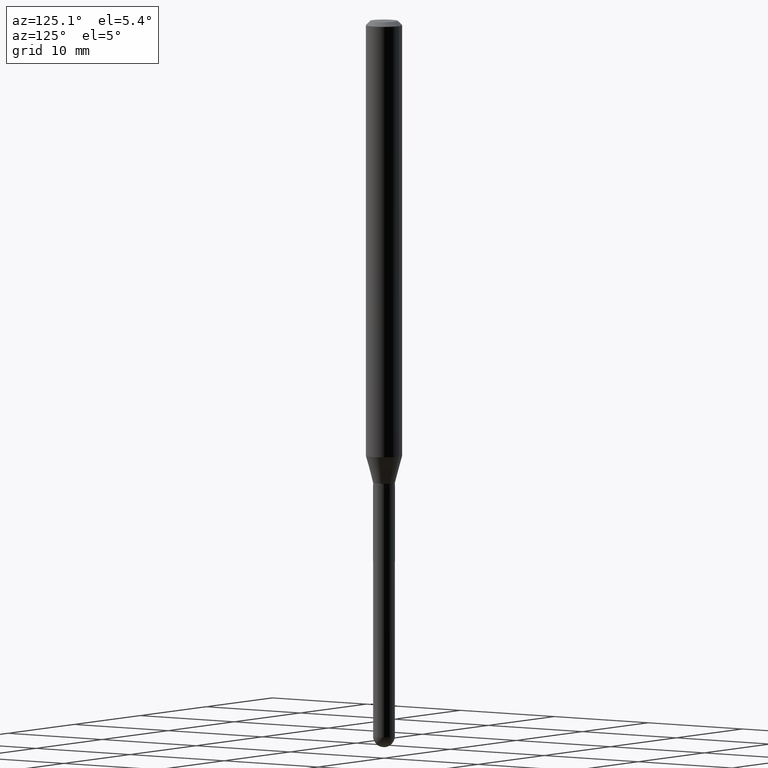
[diagram: clean part render]
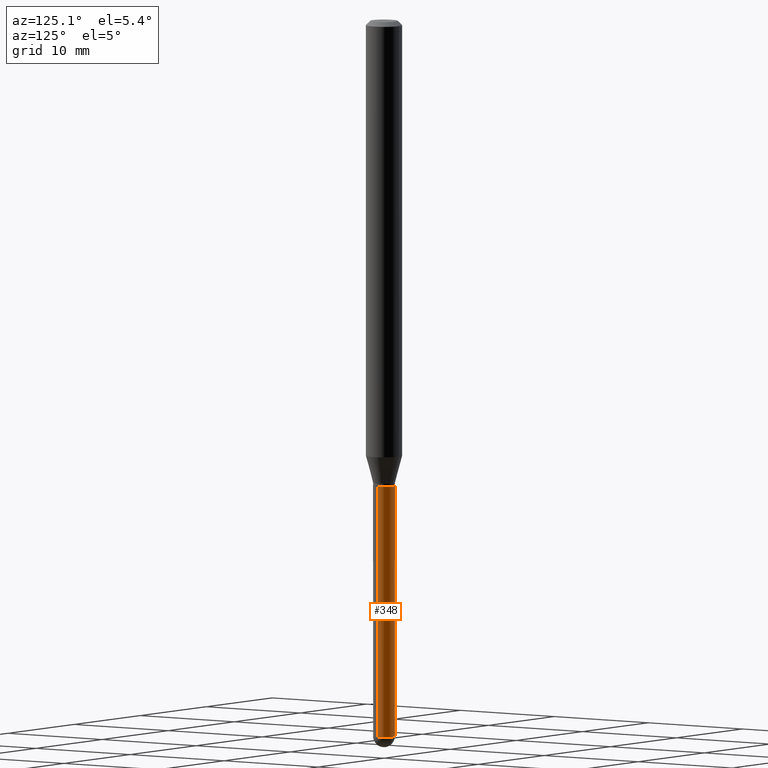
[diagram: same view with one face highlighted and labeled with its STEP entity id]
A machine part, auxiliary view. The second image highlights one B-rep face of the part: STEP entity #348.
In plain terms, the highlighted cylindrical surface (edge-blend (fillet) strip) has radius 0.9525 mm, axis along (-0, 0, 1).
Its self-contained STEP definition (entity closure, byte-faithful):
#8 = VERTEX_POINT ( 'NONE', #108 ) ;
#13 = VECTOR ( 'NONE', #482, 39.37007874015748143 ) ;
#14 = DIRECTION ( 'NONE',  ( -2.445468806185136597E-29, 3.491481338843145583E-15, 1.000000000000000000 ) ) ;
#31 = CARTESIAN_POINT ( 'NONE',  ( 0.000000000000000000, 0.000000000000000000, 0.000000000000000000 ) ) ;
#35 = CARTESIAN_POINT ( 'NONE',  ( -0.03749999999999999861, -6.825617943615102854E-15, -2.462500000000000355 ) ) ;
#41 = VECTOR ( 'NONE', #240, 39.37007874015748143 ) ;
#47 = VERTEX_POINT ( 'NONE', #312 ) ;
#57 = ORIENTED_EDGE ( 'NONE', *, *, #458, .F. ) ;
#79 = CIRCLE ( 'NONE', #468, 0.03749999999999999861 ) ;
#97 = EDGE_CURVE ( 'NONE', #142, #8, #79, .T. ) ;
#100 = ORIENTED_EDGE ( 'NONE', *, *, #178, .F. ) ;
#108 = CARTESIAN_POINT ( 'NONE',  ( 2.618611004132938704E-16, 0.03749999999999121397, -2.462500000000000355 ) ) ;
#112 = DIRECTION ( 'NONE',  ( 1.000000000000000000, -6.982962677686266711E-15, 4.876176775795935793E-29 ) ) ;
#132 = AXIS2_PLACEMENT_3D ( 'NONE', #347, #14, #164 ) ;
#142 = VERTEX_POINT ( 'NONE', #204 ) ;
#152 = AXIS2_PLACEMENT_3D ( 'NONE', #31, #411, #112 ) ;
#156 = EDGE_CURVE ( 'NONE', #387, #47, #486, .T. ) ;
#160 = EDGE_LOOP ( 'NONE', ( #425, #172, #100, #57, #438 ) ) ;
#164 = DIRECTION ( 'NONE',  ( 1.000000000000000000, -6.982962677686268288E-15, 0.000000000000000000 ) ) ;
#172 = ORIENTED_EDGE ( 'NONE', *, *, #156, .T. ) ;
#178 = EDGE_CURVE ( 'NONE', #266, #47, #369, .T. ) ;
#187 = CARTESIAN_POINT ( 'NONE',  ( 0.03749999999999999861, -2.618611004132350016E-16, 1.828566290923475922E-30 ) ) ;
#204 = CARTESIAN_POINT ( 'NONE',  ( 0.03749999999999999861, -7.353932569938374479E-15, -2.462500000000000355 ) ) ;
#221 = CARTESIAN_POINT ( 'NONE',  ( 6.021966935230899318E-29, -8.597772796901246653E-15, -2.462500000000000355 ) ) ;
#231 = LINE ( 'NONE', #187, #13 ) ;
#240 = DIRECTION ( 'NONE',  ( -2.445468806185136877E-29, 3.491481338843145188E-15, 1.000000000000000000 ) ) ;
#249 = FACE_OUTER_BOUND ( 'NONE', #160, .T. ) ;
#252 = EDGE_CURVE ( 'NONE', #8, #387, #505, .T. ) ;
#266 = VERTEX_POINT ( 'NONE', #368 ) ;
#285 = CARTESIAN_POINT ( 'NONE',  ( 6.021966935230899318E-29, -8.597772796901246653E-15, -2.462500000000000355 ) ) ;
#291 = CYLINDRICAL_SURFACE ( 'NONE', #152, 0.03749999999999999861 ) ;
#312 = CARTESIAN_POINT ( 'NONE',  ( -0.03749999999999999861, -6.825617943615102854E-15, -1.600000000000000089 ) ) ;
#347 = CARTESIAN_POINT ( 'NONE',  ( 3.912750089896218667E-29, -5.586370142149033090E-15, -1.600000000000000089 ) ) ;
#348 = ADVANCED_FACE ( 'NONE', ( #249 ), #291, .T. ) ;
#366 = DIRECTION ( 'NONE',  ( 1.000000000000000000, -6.982962677686242256E-15, 0.000000000000000000 ) ) ;
#368 = CARTESIAN_POINT ( 'NONE',  ( 0.03749999999999999861, -5.848231242562268092E-15, -1.600000000000000089 ) ) ;
#369 = CIRCLE ( 'NONE', #132, 0.03749999999999999861 ) ;
#377 = DIRECTION ( 'NONE',  ( -2.445468806185136597E-29, 3.491481338843145583E-15, 1.000000000000000000 ) ) ;
#381 = DIRECTION ( 'NONE',  ( -2.445468806185136597E-29, 3.491481338843145583E-15, 1.000000000000000000 ) ) ;
#387 = VERTEX_POINT ( 'NONE', #35 ) ;
#411 = DIRECTION ( 'NONE',  ( -2.445468806185136597E-29, 3.491481338843145583E-15, 1.000000000000000000 ) ) ;
#417 = DIRECTION ( 'NONE',  ( 1.000000000000000000, -6.982962677686242256E-15, 0.000000000000000000 ) ) ;
#425 = ORIENTED_EDGE ( 'NONE', *, *, #252, .T. ) ;
#438 = ORIENTED_EDGE ( 'NONE', *, *, #97, .T. ) ;
#444 = CARTESIAN_POINT ( 'NONE',  ( -0.03749999999999999861, 2.664535259100375598E-16, -1.844600658845589808E-30 ) ) ;
#458 = EDGE_CURVE ( 'NONE', #142, #266, #231, .T. ) ;
#468 = AXIS2_PLACEMENT_3D ( 'NONE', #221, #381, #417 ) ;
#482 = DIRECTION ( 'NONE',  ( -2.445468806185136877E-29, 3.491481338843145188E-15, 1.000000000000000000 ) ) ;
#486 = LINE ( 'NONE', #444, #41 ) ;
#505 = CIRCLE ( 'NONE', #512, 0.03749999999999999861 ) ;
#512 = AXIS2_PLACEMENT_3D ( 'NONE', #285, #377, #366 ) ;